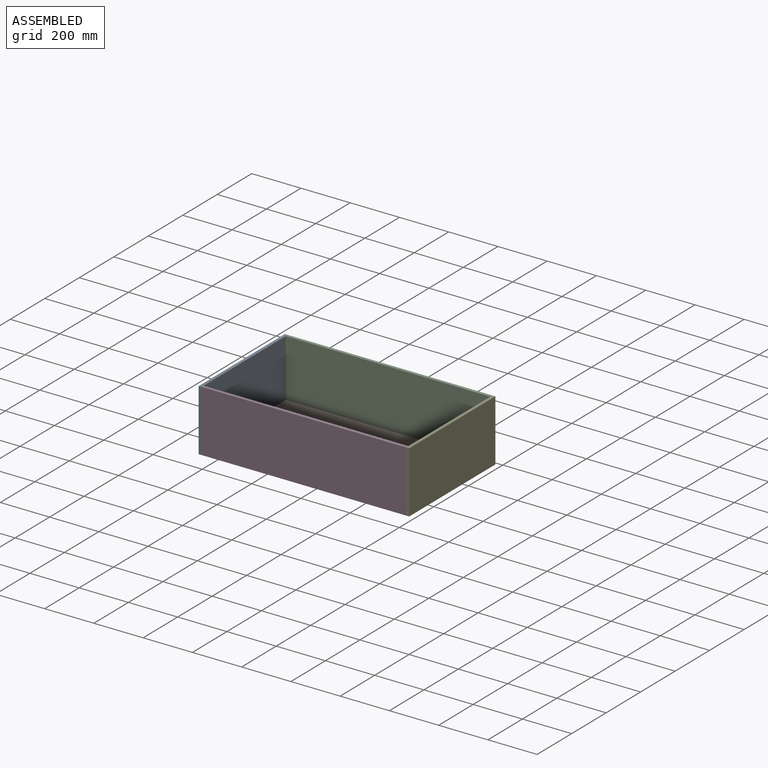
[diagram: assembled view]
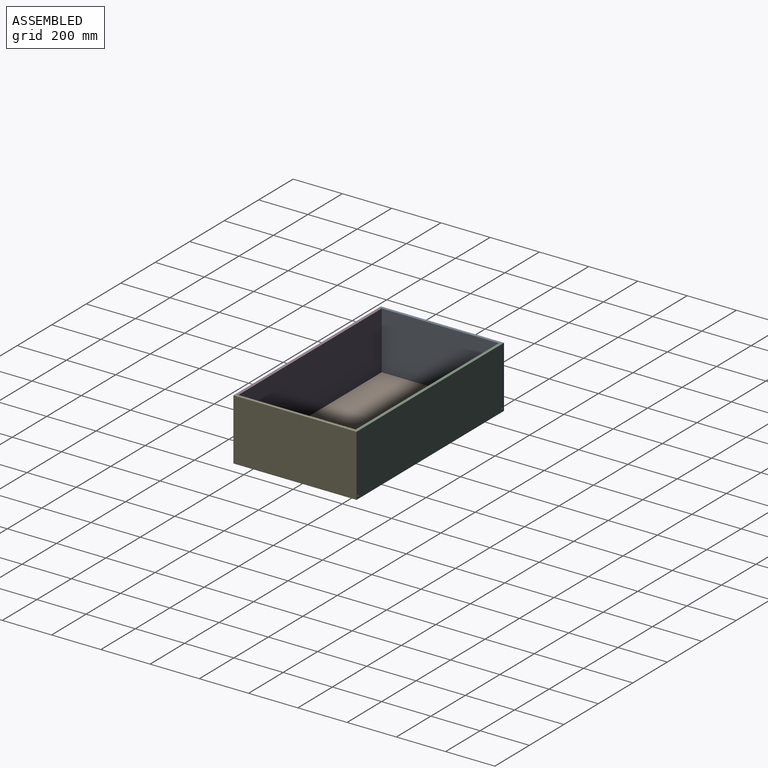
[diagram: assembled view, second angle]
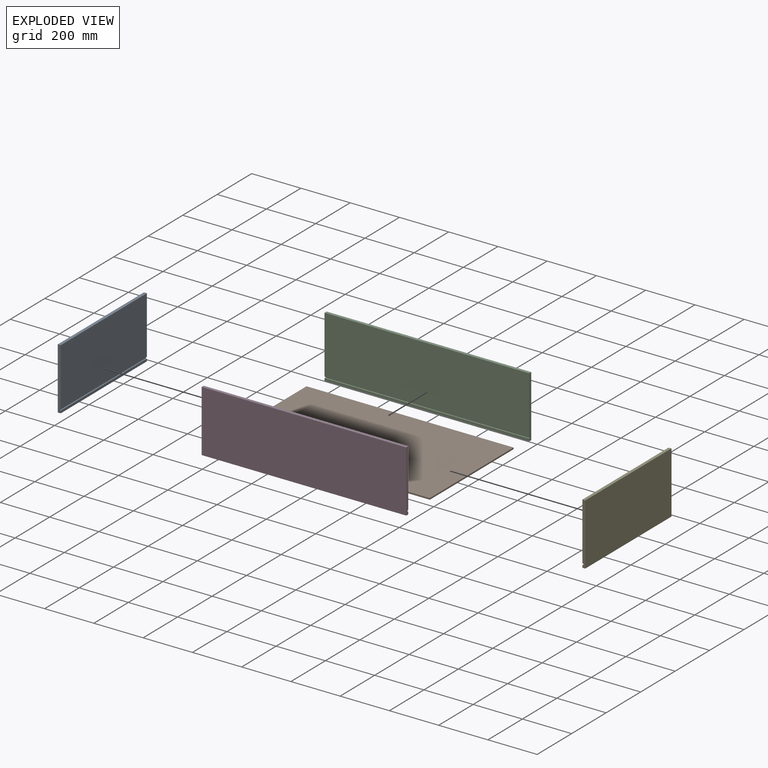
[diagram: exploded view]
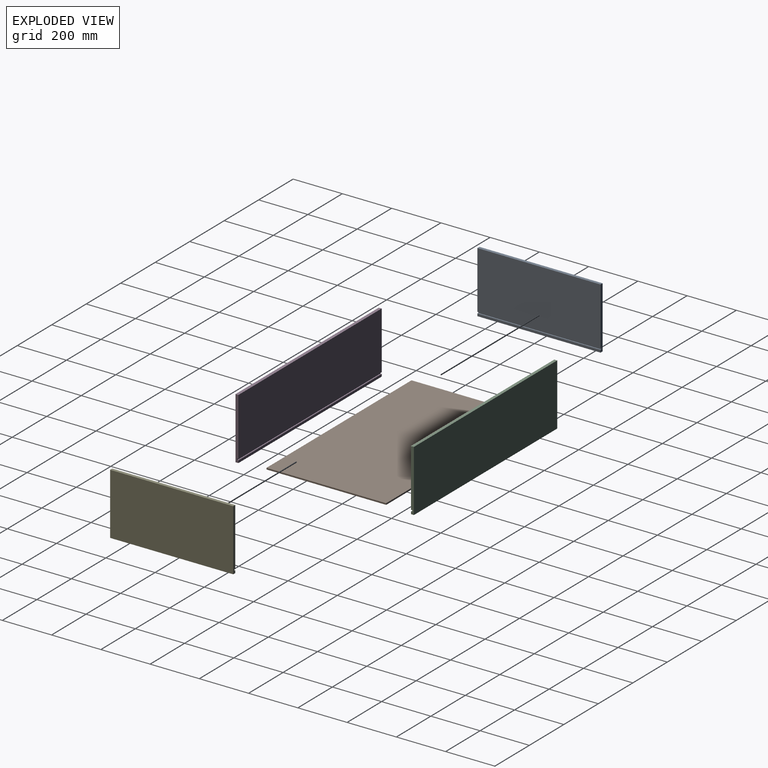
[diagram: exploded view, second angle]
ASSEMBLY  parts=5 mates=12
PART A: 10 faces, bbox 12x500x250 mm
  f0: plane 500x234mm, normal (1,0,0), area 117000mm2, adj f1,f3,f4,f7
  f1: plane 250x12mm, normal (0,-1,0), area 2970mm2, adj f0,f2,f4,f5,f6,f7,f8,f9
  f2: plane 500x12mm, normal (0,0,-1), area 6000mm2, adj f1,f3,f5,f6
  f3: plane 250x12mm, normal (0,1,0), area 2970mm2, adj f0,f2,f4,f5,f6,f7,f8,f9
  f4: plane 500x12mm, normal (0,0,1), area 6000mm2, adj f0,f1,f3,f6
  f5: plane 500x10mm, normal (1,0,0), area 5000mm2, adj f1,f2,f3,f8
  f6: plane 500x250mm, normal (-1,0,0), area 125000mm2, adj f1,f2,f3,f4
  f7: plane 500x5mm, normal (0,0,-1), area 2500mm2, adj f0,f1,f3,f9
  f8: plane 500x5mm, normal (0,0,1), area 2500mm2, adj f1,f3,f5,f9
  f9: plane 500x6mm, normal (1,0,0), area 3000mm2, adj f1,f3,f7,f8
PART B: 6 faces, bbox 841x486x6 mm
  f0: plane 486x6mm, normal (-1,0,0), area 2916mm2, adj f1,f3,f4,f5
  f1: plane 841x6mm, normal (0,-1,0), area 5046mm2, adj f0,f2,f4,f5
  f2: plane 486x6mm, normal (1,0,0), area 2916mm2, adj f1,f3,f4,f5
  f3: plane 841x6mm, normal (0,1,0), area 5046mm2, adj f0,f2,f4,f5
  f4: plane 841x486mm, normal (0,0,1), area 408726mm2, adj f0,f1,f2,f3
  f5: plane 841x486mm, normal (0,0,-1), area 408726mm2, adj f0,f1,f2,f3
PART C: 10 faces, bbox 831x12x250 mm
  f0: plane 831x234mm, normal (0,-1,0), area 194454mm2, adj f1,f3,f4,f8
  f1: plane 250x12mm, normal (-1,0,0), area 2970mm2, adj f0,f2,f4,f5,f6,f7,f8,f9
  f2: plane 831x12mm, normal (0,0,-1), area 9972mm2, adj f1,f3,f5,f6
  f3: plane 250x12mm, normal (1,0,0), area 2970mm2, adj f0,f2,f4,f5,f6,f7,f8,f9
  f4: plane 831x12mm, normal (0,0,1), area 9972mm2, adj f0,f1,f3,f6
  f5: plane 831x10mm, normal (0,-1,0), area 8310mm2, adj f1,f2,f3,f7
  f6: plane 831x250mm, normal (0,1,0), area 207750mm2, adj f1,f2,f3,f4
  f7: plane 831x5mm, normal (0,0,1), area 4155mm2, adj f1,f3,f5,f9
  f8: plane 831x5mm, normal (0,0,-1), area 4155mm2, adj f0,f1,f3,f9
  f9: plane 831x6mm, normal (0,-1,0), area 4986mm2, adj f1,f3,f7,f8
PART D: same geometry as C
PART E: same geometry as A
PLACE A t=(-808.33,-247.76,-1.13)mm
PLACE B t=(-3412.34,-9852.33,3578.88)mm
PLACE C t=(-5819.55,-14309.27,4399.7)mm
PLACE D rot(axis=(0,0,-1),180deg) t=(5057.88,-14809.27,4399.7)mm
PLACE E rot(axis=(0,0,-1),180deg) t=(46.67,-28870.78,-1.13)mm
MATE planar D.f6 <-> E.f3  axis (0,-1,0) through (-380.83,-14809.27,3693.88)mm
MATE planar E.f1 <-> C.f6  axis (0,1,0) through (40.7,-14309.27,3695.01)mm
MATE planar A.f4 <-> D.f4  axis (0,0,1) through (-802.33,-14559.27,3818.88)mm
MATE planar A.f1 <-> D.f6  axis (0,-1,0) through (-802.37,-14809.27,3695.01)mm
MATE planar C.f3 <-> E.f0  axis (1,0,0) through (34.67,-14315.23,3695.01)mm
MATE planar D.f4 <-> E.f4  axis (0,0,1) through (-380.83,-14803.27,3818.88)mm
MATE planar B.f0 <-> A.f9  axis (-1,0,0) through (-801.33,-14559.27,3581.88)mm
MATE planar D.f1 <-> E.f0  axis (1,0,0) through (34.67,-14803.3,3695.01)mm
MATE planar E.f4 <-> C.f4  axis (0,0,1) through (40.67,-14559.27,3818.88)mm
MATE planar B.f3 <-> C.f9  axis (0,1,0) through (-380.83,-14316.27,3581.88)mm
MATE planar B.f5 <-> D.f7  axis (0,0,-1) through (-380.83,-14559.27,3578.88)mm
MATE planar A.f0 <-> D.f3  axis (1,0,0) through (-796.33,-14559.27,3701.88)mm
